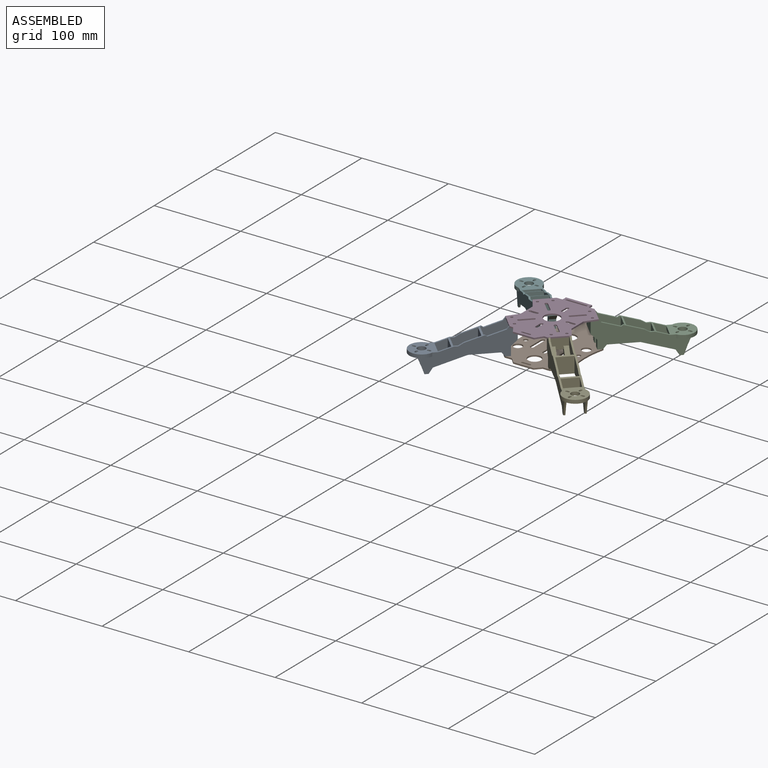
[diagram: assembled view]
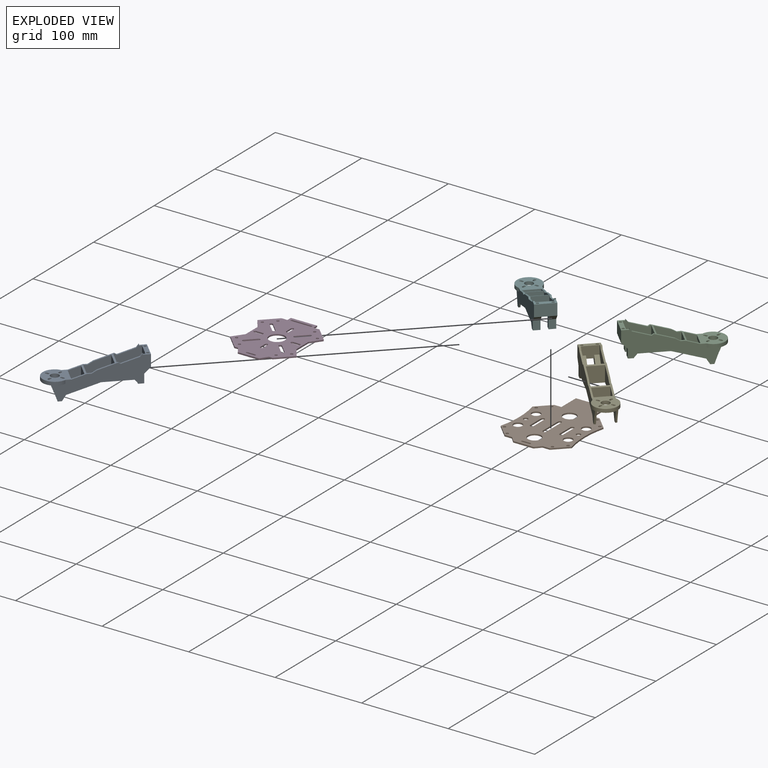
[diagram: exploded view]
GUIDED TOUR — MATED ASSEMBLY (Onshape document 4a01d97d191e2ebf08fce994, AutoMate assembly 4a01d97d191e2ebf08fce994_b2b77ca32bcb225201339847_6d13e0191be2b3ca33e12d50_default)

This assembly has 6 components, labeled P0..P5 below (a component is one placed occurrence of a part; the same part can appear more than once), held together by 4 mates. A mate is a constraint between two components; its type names the relative motion it leaves free:
  CYLINDRICAL — leaves both rotation about and translation along the listed axis free,
  PARALLEL — keeps the two listed directions parallel,
  PLANAR — leaves sliding in the plane through the listed point (normal = the listed direction) and rotation about that normal free.
Axis/direction vectors are unit vectors and 'through' points are millimeter coordinates, both in the assembly's world frame.

MATES
  1. PLANAR "Planar 3": P0 <-> P3, direction (0.000, 0.000, 1.000) through (-26.81, -26.81, -1.63) mm
  2. PLANAR "Planar 4": P1 <-> P0, direction (0.000, 0.000, 1.000) through (-2.00, 12.50, -31.63) mm
  3. PARALLEL "Parallel 1": P0 <-> P3, direction (0.707, 0.707, 0.000) through (-37.58, -23.09, -0.93) mm
  4. CYLINDRICAL "Cylindrical 1": P0 <-> P3, axis (0.000, 0.000, 1.000) through (-21.21, -31.82, -1.63) mm

ASSEMBLY ORDER
  1. P5 — the base component [order verified]
  2. P2 [order verified]
  3. P4 [order verified]
  4. P0 [order verified]
  5. P1 [order verified]
  6. P3 [order verified]
Order-tag legend:
  [order verified] — this step's position reverses a verified removal order: the component was checked to insert without passing through the ones already placed.

Of the 6 components, 2 carry the full construction recipe — the FeatureScript program that regenerates the part's solid from scratch; the rest are supplied as boundary geometry only.
Each toured component is shown spotlighted twice — in the assembled view, then in the exploded view, where a leader line traces a displaced component back to its assembled socket (saturated green if recipe-attached, orange if geometry-only; every other component desaturated gray) — followed by its recipe or geometry summary and the mates that hold it.
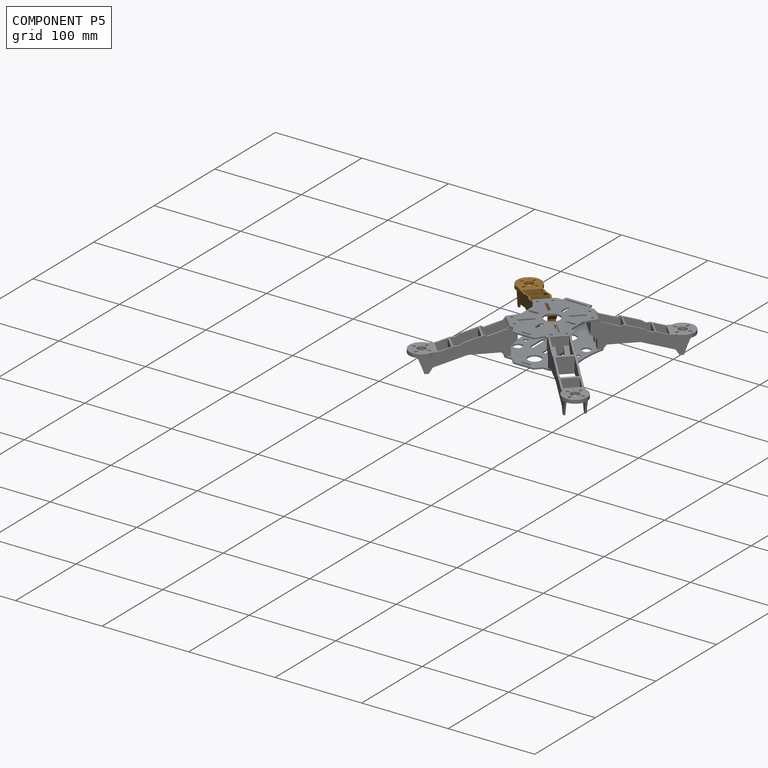
[diagram: component P5 — assembled]
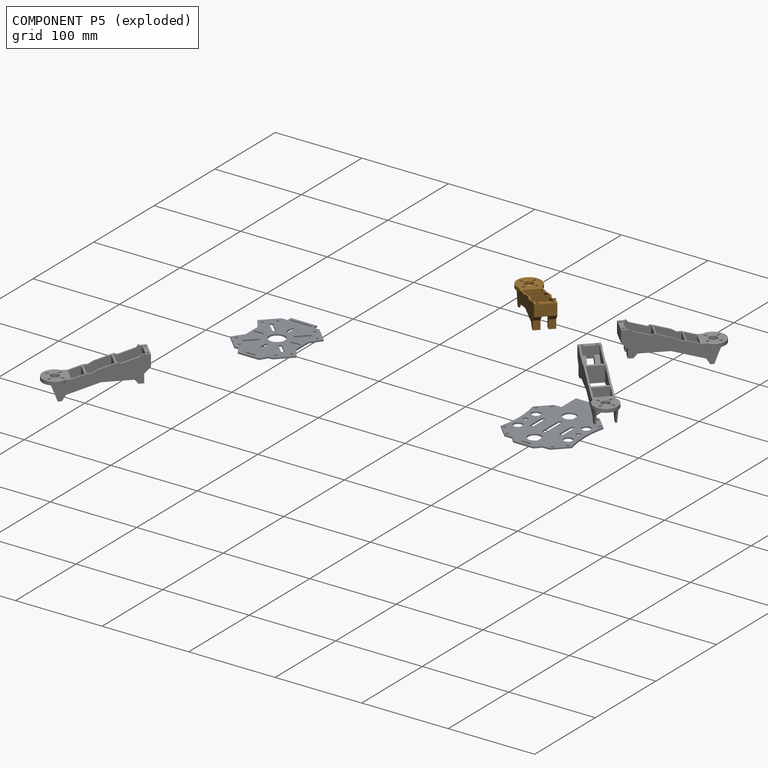
[diagram: component P5 — exploded]
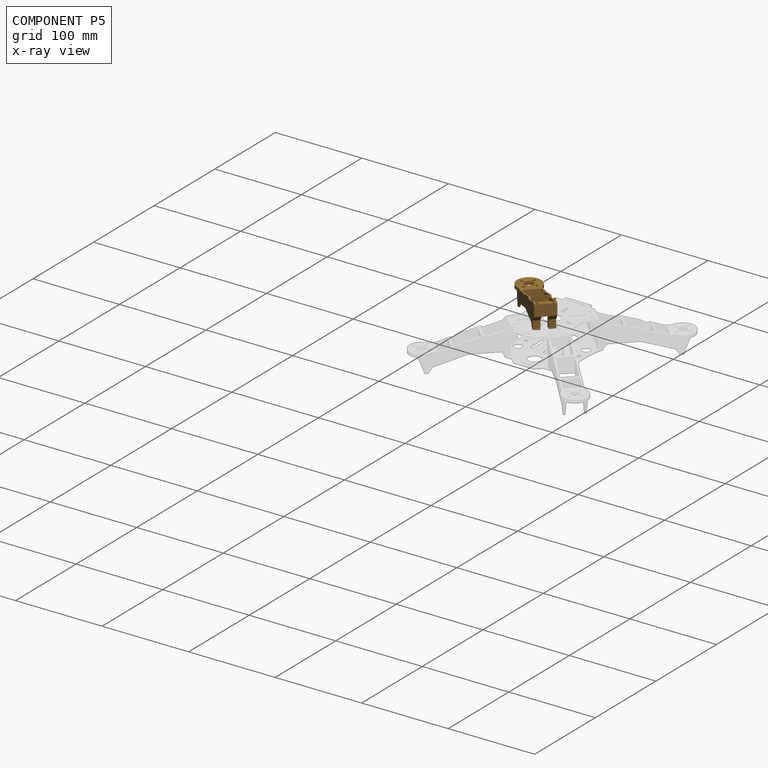
[diagram: component P5 — x-ray view]
COMPONENT P5 — geometry summary (no construction recipe available for this part):
  bounding box: 104.5 x 43.7 x 28.0 mm
  B-rep topology: 1 solid, 83 faces, 490 edges
  volume: 12116 mm^3 (9% of its bounding box)
  symmetry: mirror-symmetric across its y mid-plane
Held by: no mates (free).
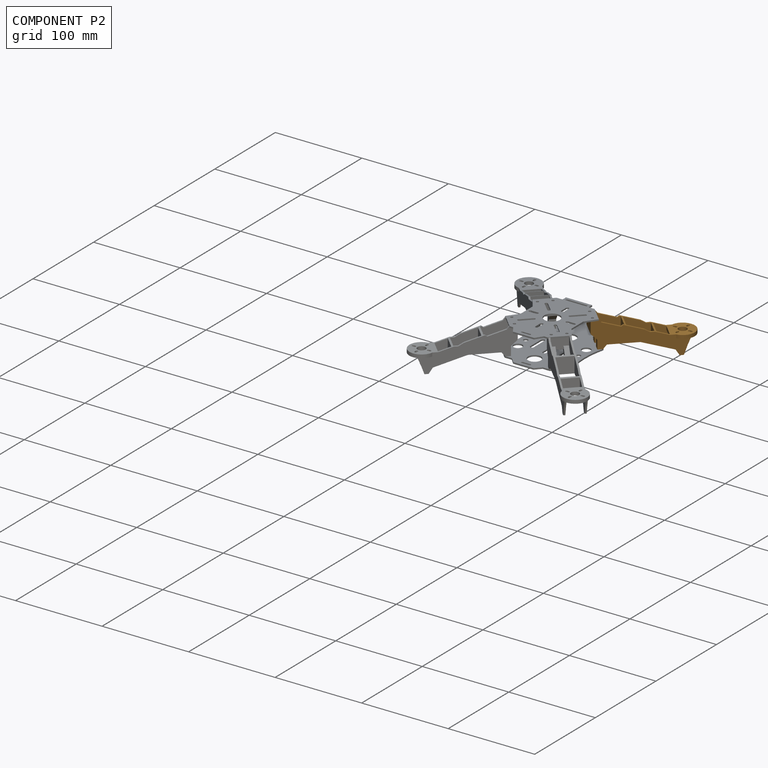
[diagram: component P2 — assembled]
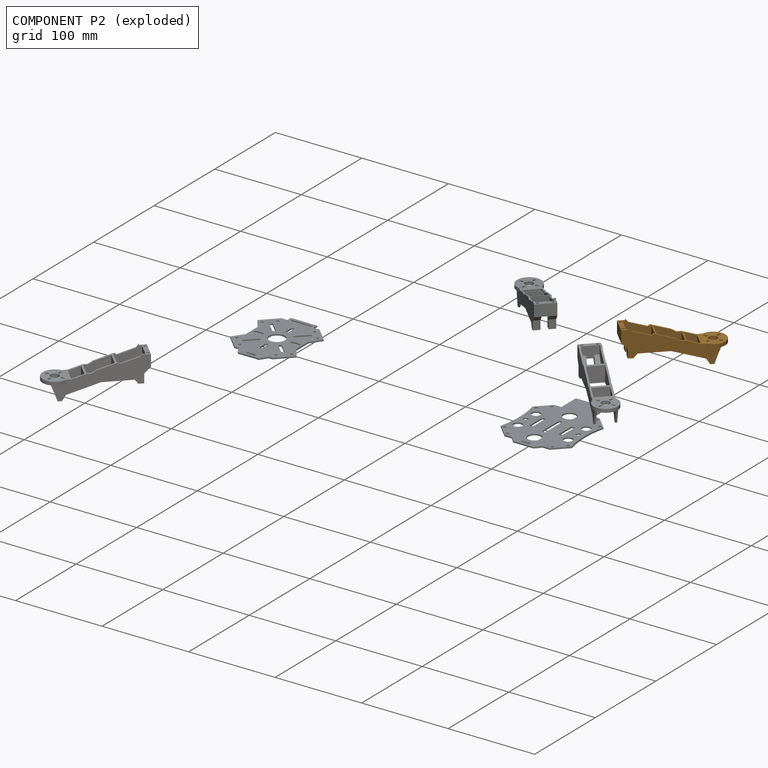
[diagram: component P2 — exploded]
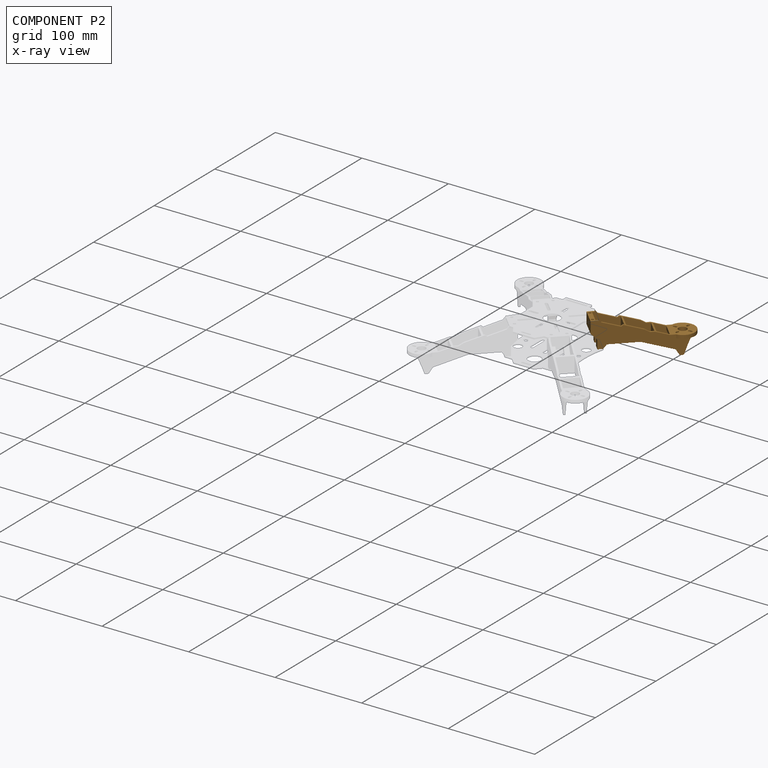
[diagram: component P2 — x-ray view]
COMPONENT P2 — geometry summary (no construction recipe available for this part):
  bounding box: 104.5 x 43.7 x 28.0 mm
  B-rep topology: 1 solid, 83 faces, 490 edges
  volume: 12116 mm^3 (9% of its bounding box)
  symmetry: mirror-symmetric across its y mid-plane
Held by: no mates (free).
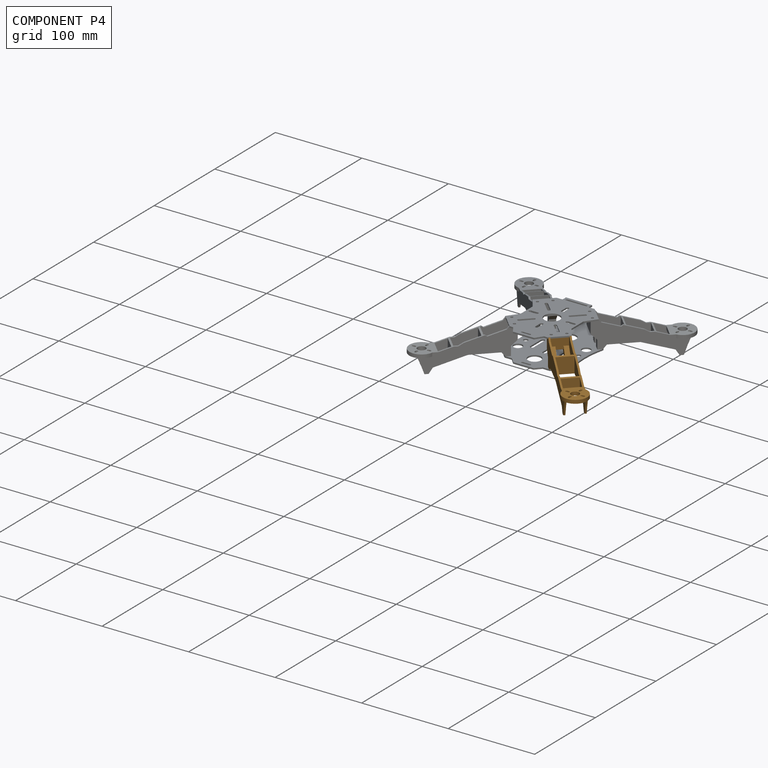
[diagram: component P4 — assembled]
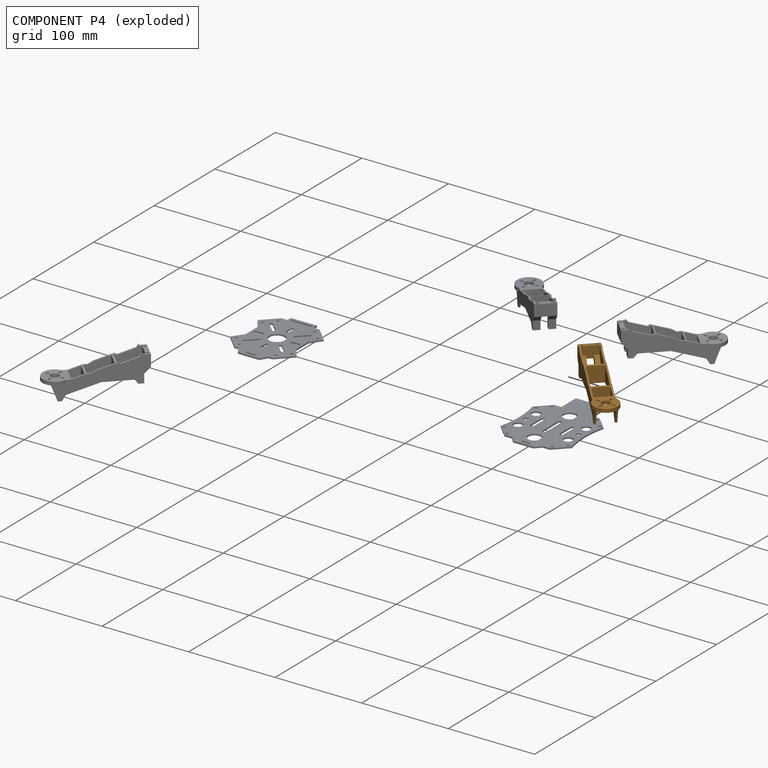
[diagram: component P4 — exploded]
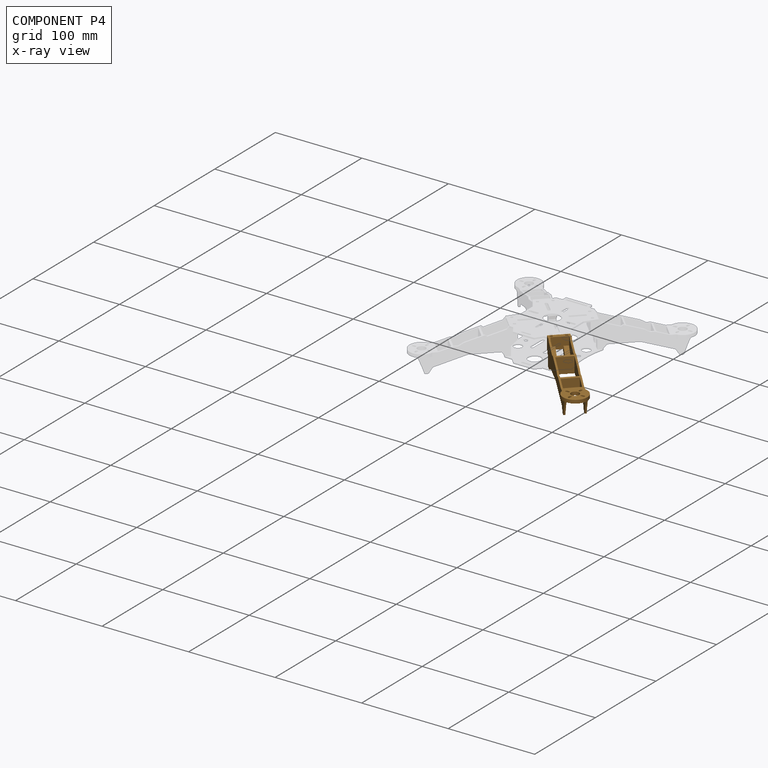
[diagram: component P4 — x-ray view]
COMPONENT P4 — geometry summary (no construction recipe available for this part):
  bounding box: 104.5 x 43.7 x 28.0 mm
  B-rep topology: 1 solid, 83 faces, 490 edges
  volume: 12116 mm^3 (9% of its bounding box)
  symmetry: mirror-symmetric across its y mid-plane
Held by: no mates (free).
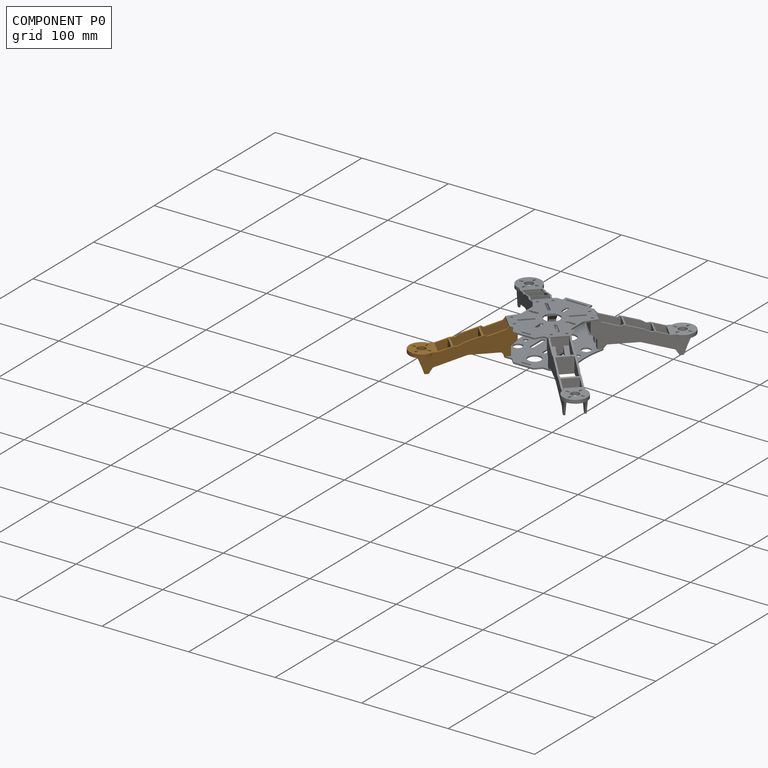
[diagram: component P0 — assembled]
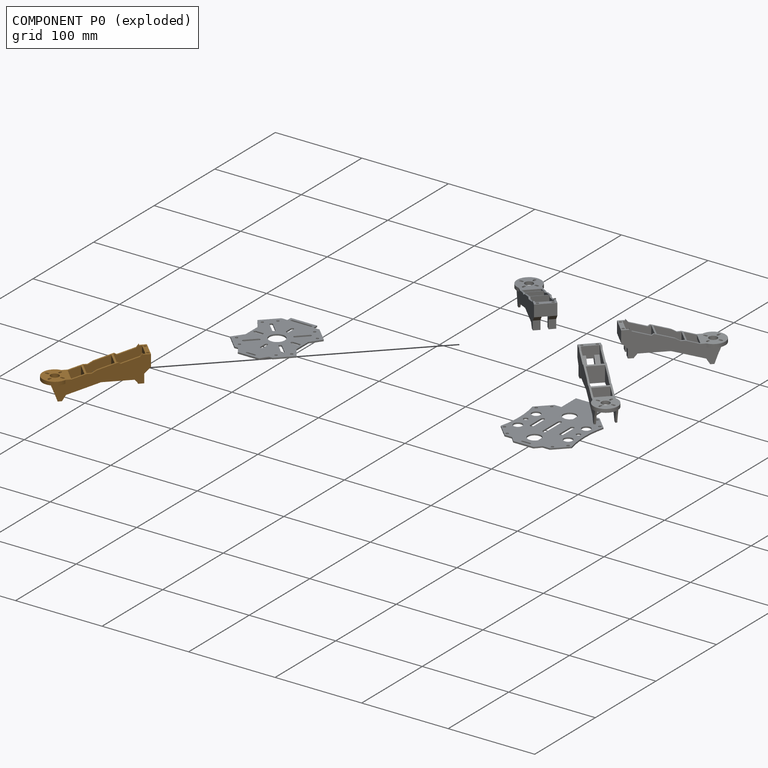
[diagram: component P0 — exploded]
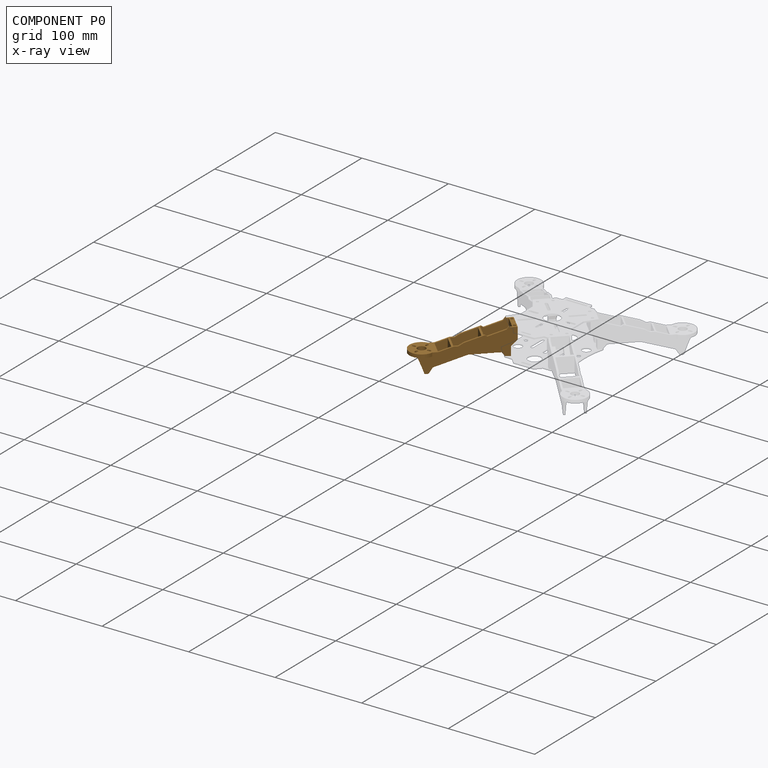
[diagram: component P0 — x-ray view]
COMPONENT P0 — geometry summary (no construction recipe available for this part):
  bounding box: 104.5 x 43.7 x 28.0 mm
  B-rep topology: 1 solid, 83 faces, 490 edges
  volume: 12116 mm^3 (9% of its bounding box)
  symmetry: mirror-symmetric across its y mid-plane
Held by: PLANAR mate "Planar 3" to P3; PLANAR mate "Planar 4" to P1; PARALLEL mate "Parallel 1" to P3; CYLINDRICAL mate "Cylindrical 1" to P3.
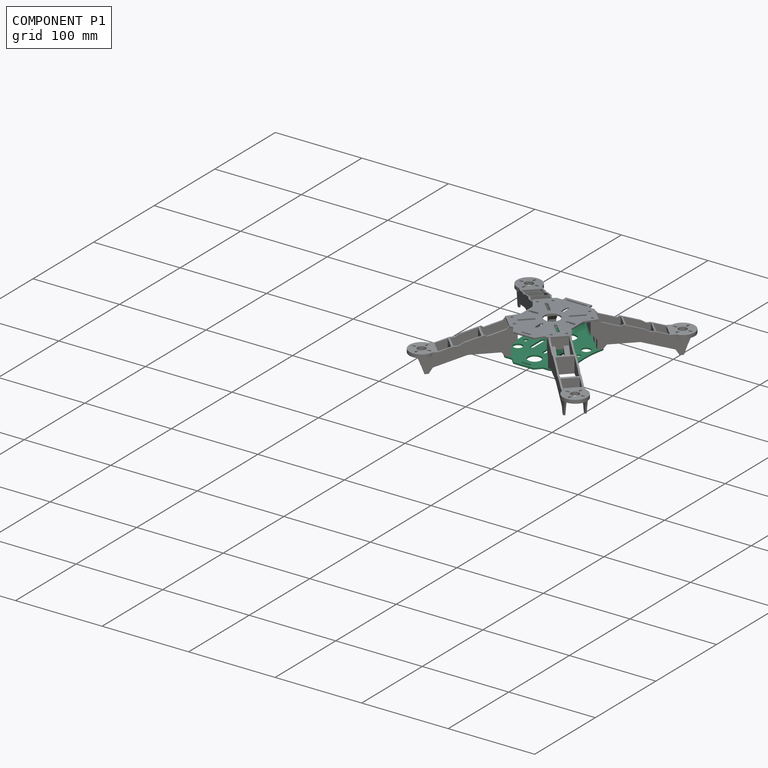
[diagram: component P1 — assembled]
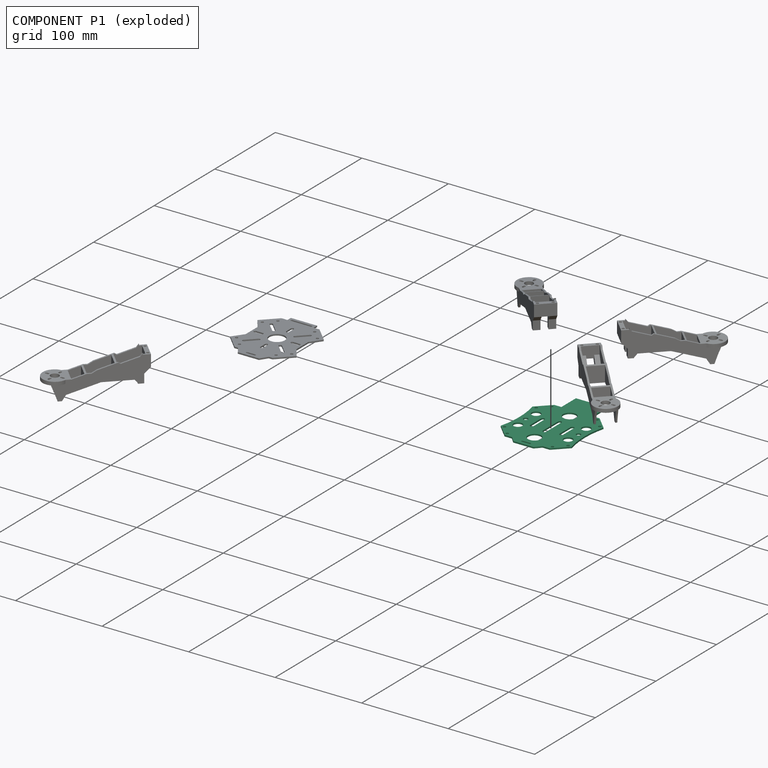
[diagram: component P1 — exploded]
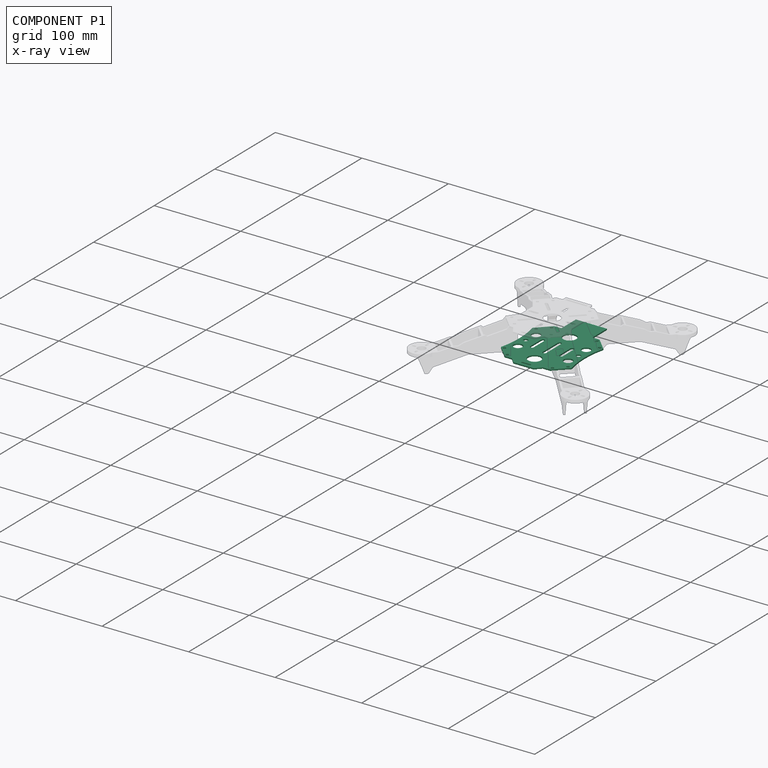
[diagram: component P1 — x-ray view]
COMPONENT P1 — recipe-attached (CADFS 00325816, mesh-verified: the recipe's output STEP matches this component's geometry to below the mesh-comparison resolution (tessellation chordal tolerance ~0.209 mm)).
Held by: PLANAR mate "Planar 4" to P0.
Construction recipe (FeatureScript — the CAD program that rebuilds this solid; sketch coordinates are in the units given by the * unit suffixes, e.g. mm):

FeatureScript 1511;
import(path : "onshape/std/geometry.fs", version : "1511.0");
import(path : "onshape/std/common.fs", version : "1511.0");
const mm = millimeter;
const VERTEX = EntityType.VERTEX;
const EDGE = EntityType.EDGE;
const FACE = EntityType.FACE;
const BODY = EntityType.BODY;
function v(x, y){return vector(x, y);}
function OD(order){return orderDisambiguation(order);}
function OSD(set){return originalSetDisambiguation(set);}
function TD(topology){return topologyDisambiguation(topology);}
function TDD(query){return trueDependencyDisambiguation(query);}
function sQuery(a, b, c) {return sketchEntityQuery(a, b, c);}

annotation { "Feature Type Name" : "Feature", "Feature Type Description" : "" }
export const myFeature = defineFeature(function(context is Context, id is Id, definition is map)
    precondition{}
    {
        {
            var Q0;
            Q0=qCreatedBy(makeId("Top.planeOp"),FACE);
            var sketch = newSketch(context, id + "F0", { "sketchPlane" : qUnion([Q0])});
            skLineSegment(sketch, "E0.left", {"start": v(-2, 12.5) * mm, "end": v(-2, -12.5) * mm});
            skLineSegment(sketch, "E0.right", {"start": v(2, 12.5) * mm, "end": v(2, -12.5) * mm});
            skLineSegment(sketch, "E1", {"start": v(0, 0) * mm, "end": v(0, 54.3) * mm, "construction": true});
            skArc(sketch, "E2", {"start": v(2, 12.5) * mm, "mid": v(0, 14.5) * mm, "end": v(-2, 12.5) * mm});
            skArc(sketch, "E3", {"start": v(-2, -12.5) * mm, "mid": v(0, -14.5) * mm, "end": v(2, -12.5) * mm});
            skLineSegment(sketch, "E4", {"start": v(-64.66, 0) * mm, "end": v(96.62, 0) * mm, "construction": true});
            skLineSegment(sketch, "E5.left", {"start": v(-19, 9) * mm, "end": v(-19, -9) * mm});
            skLineSegment(sketch, "E5.right", {"start": v(-15, 9) * mm, "end": v(-15, -9) * mm});
            skArc(sketch, "E6", {"start": v(-15, 9) * mm, "mid": v(-17, 11) * mm, "end": v(-19, 9) * mm});
            skArc(sketch, "E7", {"start": v(-19, -9) * mm, "mid": v(-17, -11) * mm, "end": v(-15, -9) * mm});
            skArc(sketch, "E8.MirrorCS", {"start": v(19, -9) * mm, "mid": v(17, -11) * mm, "end": v(15, -9) * mm});
            skArc(sketch, "E9.MirrorCS", {"start": v(15, 9) * mm, "mid": v(17, 11) * mm, "end": v(19, 9) * mm});
            skLineSegment(sketch, "E10.MirrorCS", {"start": v(15, 9) * mm, "end": v(15, -9) * mm});
            skLineSegment(sketch, "E11.MirrorCS", {"start": v(19, 9) * mm, "end": v(19, -9) * mm});
            skCircle(sketch, "E12", {"center": v(-30.5, 0) * mm, "radius": 2.5 * mm});
            skCircle(sketch, "E13.MirrorC", {"center": v(30.5, 0) * mm, "radius": 2.5 * mm});
            skCircle(sketch, "E14", {"center": v(0, 29) * mm, "radius": 7.5 * mm});
            skCircle(sketch, "E15.MirrorC", {"center": v(0, -29) * mm, "radius": 7.5 * mm});
            skCircle(sketch, "E16", {"center": v(-29, 15) * mm, "radius": 5 * mm});
            skCircle(sketch, "E17.MirrorC", {"center": v(29, 15) * mm, "radius": 5 * mm});
            skCircle(sketch, "E18.MirrorC", {"center": v(-29, -15) * mm, "radius": 5 * mm});
            skCircle(sketch, "E19.MirrorC", {"center": v(29, -15) * mm, "radius": 5 * mm});
            skLineSegment(sketch, "E20.bottom", {"start": v(-4.5, 44) * mm, "end": v(4.5, 44) * mm});
            skLineSegment(sketch, "E20.top", {"start": v(-4.5, 42) * mm, "end": v(4.5, 42) * mm});
            skLineSegment(sketch, "E20.left", {"start": v(-4.5, 44) * mm, "end": v(-4.5, 42) * mm, "construction": true});
            skLineSegment(sketch, "E20.right", {"start": v(4.5, 44) * mm, "end": v(4.5, 42) * mm, "construction": true});
            skArc(sketch, "E21", {"start": v(-4.5, 44) * mm, "mid": v(-5.5, 43) * mm, "end": v(-4.5, 42) * mm});
            skArc(sketch, "E22", {"start": v(4.5, 42) * mm, "mid": v(5.5, 43) * mm, "end": v(4.5, 44) * mm});
            skLineSegment(sketch, "E23", {"start": v(-11.75, 47.5) * mm, "end": v(11.75, 47.5) * mm});
            skLineSegment(sketch, "E24", {"start": v(-18, -65) * mm, "end": v(18, -65) * mm});
            skArc(sketch, "E25", {"start": v(-41, -26.18) * mm, "mid": v(-37.75, 0) * mm, "end": v(-41, 26.18) * mm});
            skLineSegment(sketch, "E26", {"start": v(-41, 26.18) * mm, "end": v(-26.18, 41) * mm});
            skLineSegment(sketch, "E27", {"start": v(-26.18, 41) * mm, "end": v(-17.75, 41) * mm});
            skLineSegment(sketch, "E28", {"start": v(-17.75, 41) * mm, "end": v(-11.75, 47.5) * mm});
            skLineSegment(sketch, "E29", {"start": v(0, 0) * mm, "end": v(-64.55, 64.55) * mm, "construction": true});
            skLineSegment(sketch, "E30.MirrorCS", {"start": v(-41, -26.18) * mm, "end": v(-26.18, -41) * mm});
            skLineSegment(sketch, "E31", {"start": v(-18, -65) * mm, "end": v(-18, -41) * mm});
            skLineSegment(sketch, "E32", {"start": v(-18, -41) * mm, "end": v(-26.18, -41) * mm});
            skLineSegment(sketch, "E33.MirrorCS", {"start": v(41, 26.18) * mm, "end": v(26.18, 41) * mm});
            skLineSegment(sketch, "E34.MirrorCS", {"start": v(26.18, 41) * mm, "end": v(17.75, 41) * mm});
            skLineSegment(sketch, "E35.MirrorCS", {"start": v(17.75, 41) * mm, "end": v(11.75, 47.5) * mm});
            skArc(sketch, "E36.MirrorCS", {"start": v(41, -26.18) * mm, "mid": v(37.75, 0) * mm, "end": v(41, 26.18) * mm});
            skLineSegment(sketch, "E37.MirrorCS", {"start": v(41, -26.18) * mm, "end": v(26.18, -41) * mm});
            skLineSegment(sketch, "E38.MirrorCS", {"start": v(18, -41) * mm, "end": v(26.18, -41) * mm});
            skLineSegment(sketch, "E39.MirrorCS", {"start": v(18, -65) * mm, "end": v(18, -41) * mm});
            skCircle(sketch, "E40", {"center": v(-26.16, 36.77) * mm, "radius": 1.63 * mm});
            skCircle(sketch, "E41", {"center": v(-36.77, 26.16) * mm, "radius": 1.63 * mm});
            skLineSegment(sketch, "E42", {"start": v(-21.93, 41) * mm, "end": v(-40.2, 22.74) * mm, "construction": true});
            skCircle(sketch, "E43.1.0", {"center": v(-36.77, -26.16) * mm, "radius": 1.63 * mm});
            skCircle(sketch, "E43.1.1", {"center": v(-26.16, -36.77) * mm, "radius": 1.63 * mm});
            skCircle(sketch, "E43.2.0", {"center": v(26.16, -36.77) * mm, "radius": 1.63 * mm});
            skCircle(sketch, "E43.2.1", {"center": v(36.77, -26.16) * mm, "radius": 1.63 * mm});
            skCircle(sketch, "E43.3.0", {"center": v(36.77, 26.16) * mm, "radius": 1.63 * mm});
            skCircle(sketch, "E43.3.1", {"center": v(26.16, 36.77) * mm, "radius": 1.63 * mm});
            skPoint(sketch, "E43.center", {"position": v(0, 0) * mm});
            skSolve(sketch);
        }
        {
            var Q0;
            Q0=makeQuery(id+"F0.imprint","IMPRINT",FACE,{"disambiguationData":[TD([[makeQuery(id+"F0.imprint","IMPRINT",EDGE,{"derivedFrom":sQuery(id+"F0.wireOp",EDGE,"E0.left")}),-1.0]])]});
            extrude(context, id + "F1", {"entities" : qUnion([Q0]), "depth" : 1.6 * mm});
        }
    });
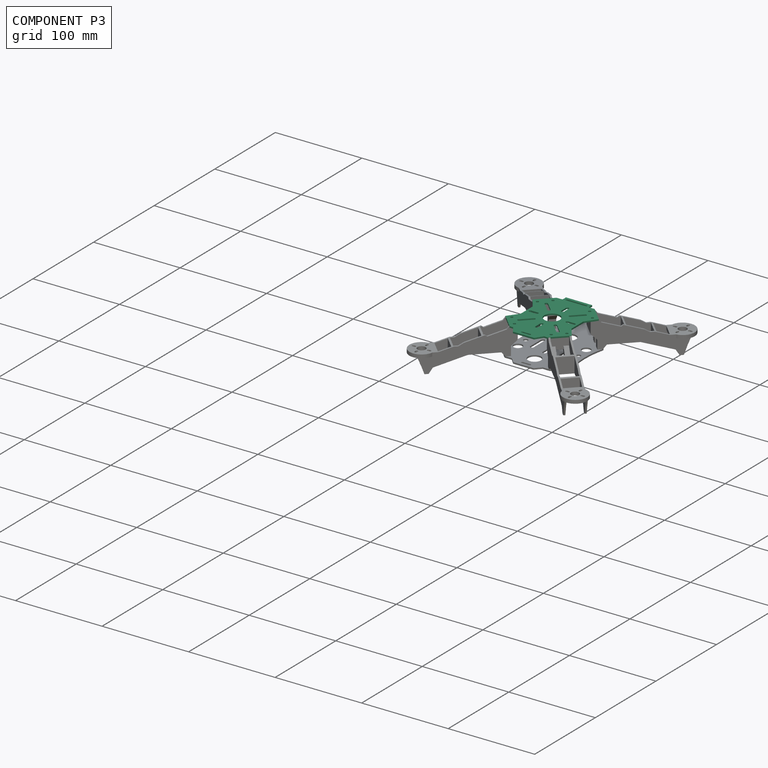
[diagram: component P3 — assembled]
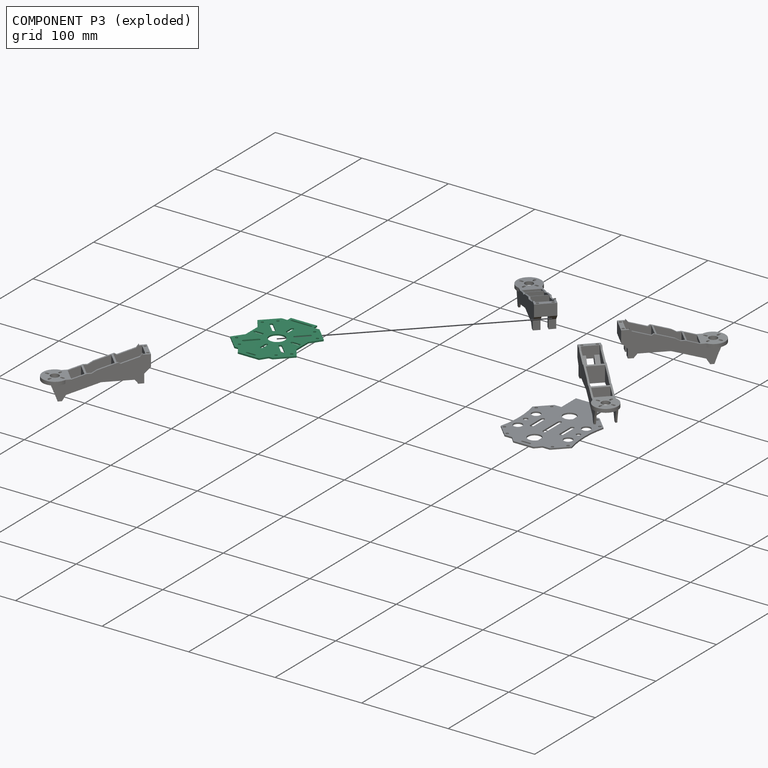
[diagram: component P3 — exploded]
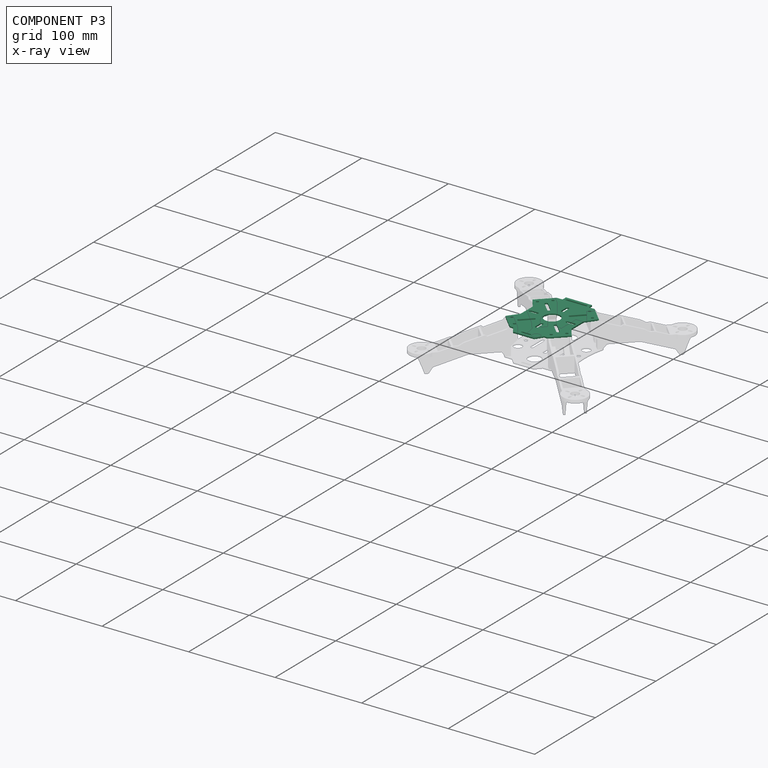
[diagram: component P3 — x-ray view]
COMPONENT P3 — recipe-attached (CADFS 00325815, mesh-verified: the recipe's output STEP matches this component's geometry to below the mesh-comparison resolution (tessellation chordal tolerance ~0.179 mm)).
Held by: PLANAR mate "Planar 3" to P0; PARALLEL mate "Parallel 1" to P0; CYLINDRICAL mate "Cylindrical 1" to P0.
Construction recipe (FeatureScript — the CAD program that rebuilds this solid; sketch coordinates are in the units given by the * unit suffixes, e.g. mm):

FeatureScript 1511;
import(path : "onshape/std/geometry.fs", version : "1511.0");
import(path : "onshape/std/common.fs", version : "1511.0");
const mm = millimeter;
const VERTEX = EntityType.VERTEX;
const EDGE = EntityType.EDGE;
const FACE = EntityType.FACE;
const BODY = EntityType.BODY;
function v(x, y){return vector(x, y);}
function OD(order){return orderDisambiguation(order);}
function OSD(set){return originalSetDisambiguation(set);}
function TD(topology){return topologyDisambiguation(topology);}
function TDD(query){return trueDependencyDisambiguation(query);}
function sQuery(a, b, c) {return sketchEntityQuery(a, b, c);}

annotation { "Feature Type Name" : "Feature", "Feature Type Description" : "" }
export const myFeature = defineFeature(function(context is Context, id is Id, definition is map)
    precondition{}
    {
        {
            var Q0;
            Q0=qCreatedBy(makeId("Top.planeOp"),FACE);
            var sketch = newSketch(context, id + "F0", { "sketchPlane" : qUnion([Q0])});
            skCircle(sketch, "E0", {"center": v(0, 0) * mm, "radius": 9 * mm});
            skLineSegment(sketch, "E1", {"start": v(0, 0) * mm, "end": v(0, 78.14) * mm, "construction": true});
            skLineSegment(sketch, "E2", {"start": v(0, 0) * mm, "end": v(-110.17, 0) * mm, "construction": true});
            skLineSegment(sketch, "E3.left", {"start": v(-1.59, 25.29) * mm, "end": v(-1.59, 17.46) * mm});
            skLineSegment(sketch, "E3.right", {"start": v(1.59, 25.29) * mm, "end": v(1.59, 17.46) * mm});
            skArc(sketch, "E4", {"start": v(1.59, 25.29) * mm, "mid": v(0, 26.87) * mm, "end": v(-1.59, 25.29) * mm});
            skArc(sketch, "E5", {"start": v(-1.59, 17.46) * mm, "mid": v(0, 15.88) * mm, "end": v(1.59, 17.46) * mm});
            skLineSegment(sketch, "E6.1.0", {"start": v(-25.29, -1.59) * mm, "end": v(-17.46, -1.59) * mm});
            skLineSegment(sketch, "E6.1.1", {"start": v(-25.29, 1.59) * mm, "end": v(-17.46, 1.59) * mm});
            skArc(sketch, "E6.1.2", {"start": v(-17.46, -1.59) * mm, "mid": v(-15.88, 0) * mm, "end": v(-17.46, 1.59) * mm});
            skArc(sketch, "E6.1.3", {"start": v(-25.29, 1.59) * mm, "mid": v(-26.87, 0) * mm, "end": v(-25.29, -1.59) * mm});
            skLineSegment(sketch, "E6.2.0", {"start": v(1.59, -25.29) * mm, "end": v(1.59, -17.46) * mm});
            skLineSegment(sketch, "E6.2.1", {"start": v(-1.59, -25.29) * mm, "end": v(-1.59, -17.46) * mm});
            skArc(sketch, "E6.2.2", {"start": v(1.59, -17.46) * mm, "mid": v(0, -15.88) * mm, "end": v(-1.59, -17.46) * mm});
            skArc(sketch, "E6.2.3", {"start": v(-1.59, -25.29) * mm, "mid": v(0, -26.87) * mm, "end": v(1.59, -25.29) * mm});
            skLineSegment(sketch, "E6.3.0", {"start": v(25.29, 1.59) * mm, "end": v(17.46, 1.59) * mm});
            skLineSegment(sketch, "E6.3.1", {"start": v(25.29, -1.59) * mm, "end": v(17.46, -1.59) * mm});
            skArc(sketch, "E6.3.2", {"start": v(17.46, 1.59) * mm, "mid": v(15.88, 0) * mm, "end": v(17.46, -1.59) * mm});
            skArc(sketch, "E6.3.3", {"start": v(25.29, -1.59) * mm, "mid": v(26.87, 0) * mm, "end": v(25.29, 1.59) * mm});
            skLineSegment(sketch, "E7", {"start": v(0, 0) * mm, "end": v(-50.05, 50.05) * mm, "construction": true});
            skLineSegment(sketch, "E8.1.0", {"start": v(-23.6, 21.35) * mm, "end": v(-13.47, 11.23) * mm});
            skLineSegment(sketch, "E8.1.1", {"start": v(-21.35, 23.6) * mm, "end": v(-11.23, 13.47) * mm});
            skArc(sketch, "E8.1.2", {"start": v(-13.47, 11.23) * mm, "mid": v(-11.23, 11.23) * mm, "end": v(-11.23, 13.47) * mm});
            skArc(sketch, "E8.1.3", {"start": v(-21.35, 23.6) * mm, "mid": v(-23.6, 23.6) * mm, "end": v(-23.6, 21.35) * mm});
            skArc(sketch, "E9.1.0", {"start": v(-23.6, -21.35) * mm, "mid": v(-23.6, -23.6) * mm, "end": v(-21.35, -23.6) * mm});
            skArc(sketch, "E9.1.1", {"start": v(-11.23, -13.47) * mm, "mid": v(-11.23, -11.23) * mm, "end": v(-13.47, -11.23) * mm});
            skLineSegment(sketch, "E9.1.2", {"start": v(-21.35, -23.6) * mm, "end": v(-11.23, -13.47) * mm});
            skLineSegment(sketch, "E9.1.3", {"start": v(-23.6, -21.35) * mm, "end": v(-13.47, -11.23) * mm});
            skArc(sketch, "E9.2.0", {"start": v(21.35, -23.6) * mm, "mid": v(23.6, -23.6) * mm, "end": v(23.6, -21.35) * mm});
            skArc(sketch, "E9.2.1", {"start": v(13.47, -11.23) * mm, "mid": v(11.23, -11.23) * mm, "end": v(11.23, -13.47) * mm});
            skLineSegment(sketch, "E9.2.2", {"start": v(23.6, -21.35) * mm, "end": v(13.47, -11.23) * mm});
            skLineSegment(sketch, "E9.2.3", {"start": v(21.35, -23.6) * mm, "end": v(11.23, -13.47) * mm});
            skArc(sketch, "E9.3.0", {"start": v(23.6, 21.35) * mm, "mid": v(23.6, 23.6) * mm, "end": v(21.35, 23.6) * mm});
            skArc(sketch, "E9.3.1", {"start": v(11.23, 13.47) * mm, "mid": v(11.23, 11.23) * mm, "end": v(13.47, 11.23) * mm});
            skLineSegment(sketch, "E9.3.2", {"start": v(21.35, 23.6) * mm, "end": v(11.23, 13.47) * mm});
            skLineSegment(sketch, "E9.3.3", {"start": v(23.6, 21.35) * mm, "end": v(13.47, 11.23) * mm});
            skLineSegment(sketch, "E10", {"start": v(-29.34, -9.84) * mm, "end": v(-29.34, 9.84) * mm});
            skLineSegment(sketch, "E11", {"start": v(-29.34, 9.84) * mm, "end": v(-38.4, 22.4) * mm});
            skLineSegment(sketch, "E12", {"start": v(-38.4, 22.4) * mm, "end": v(-21.96, 38.84) * mm});
            skLineSegment(sketch, "E13", {"start": v(-21.96, 38.84) * mm, "end": v(-15.11, 38.84) * mm});
            skLineSegment(sketch, "E14", {"start": v(-15.11, 38.84) * mm, "end": v(-15.11, 44.55) * mm});
            skLineSegment(sketch, "E15", {"start": v(-15.11, 44.55) * mm, "end": v(0, 44.55) * mm});
            skLineSegment(sketch, "E16", {"start": v(-29.34, -9.84) * mm, "end": v(-38.4, -22.4) * mm});
            skLineSegment(sketch, "E17", {"start": v(-38.4, -22.4) * mm, "end": v(-21.96, -38.84) * mm});
            skLineSegment(sketch, "E18", {"start": v(-21.96, -38.84) * mm, "end": v(-17.78, -38.84) * mm});
            skLineSegment(sketch, "E19", {"start": v(-12.26, -47.2) * mm, "end": v(-17.78, -38.84) * mm});
            skLineSegment(sketch, "E20", {"start": v(-12.26, -47.2) * mm, "end": v(0, -47.2) * mm});
            skLineSegment(sketch, "E21.MirrorCS", {"start": v(15.11, 44.55) * mm, "end": v(0, 44.55) * mm});
            skLineSegment(sketch, "E22.MirrorCS", {"start": v(15.11, 38.84) * mm, "end": v(15.11, 44.55) * mm});
            skLineSegment(sketch, "E23.MirrorCS", {"start": v(21.96, 38.84) * mm, "end": v(15.11, 38.84) * mm});
            skLineSegment(sketch, "E24.MirrorCS", {"start": v(38.4, 22.4) * mm, "end": v(21.96, 38.84) * mm});
            skLineSegment(sketch, "E25.MirrorCS", {"start": v(29.34, 9.84) * mm, "end": v(38.4, 22.4) * mm});
            skLineSegment(sketch, "E26.MirrorCS", {"start": v(29.34, -9.84) * mm, "end": v(29.34, 9.84) * mm});
            skLineSegment(sketch, "E27.MirrorCS", {"start": v(29.34, -9.84) * mm, "end": v(38.4, -22.4) * mm});
            skLineSegment(sketch, "E28.MirrorCS", {"start": v(38.4, -22.4) * mm, "end": v(21.96, -38.84) * mm});
            skLineSegment(sketch, "E29.MirrorCS", {"start": v(21.96, -38.84) * mm, "end": v(17.78, -38.84) * mm});
            skLineSegment(sketch, "E30.MirrorCS", {"start": v(12.26, -47.2) * mm, "end": v(17.78, -38.84) * mm});
            skLineSegment(sketch, "E31.MirrorCS", {"start": v(12.26, -47.2) * mm, "end": v(0, -47.2) * mm});
            skLineSegment(sketch, "E32.bottom", {"start": v(-11.3, 41.35) * mm, "end": v(11.3, 41.35) * mm});
            skLineSegment(sketch, "E32.top", {"start": v(-11.3, 39.17) * mm, "end": v(11.3, 39.17) * mm});
            skLineSegment(sketch, "E33.bottom", {"start": v(-4.5, -41.96) * mm, "end": v(4.5, -41.96) * mm});
            skLineSegment(sketch, "E33.top", {"start": v(-4.5, -44) * mm, "end": v(4.5, -44) * mm});
            skArc(sketch, "E34", {"start": v(-11.3, 41.35) * mm, "mid": v(-12.38, 40.26) * mm, "end": v(-11.3, 39.17) * mm});
            skArc(sketch, "E35", {"start": v(11.3, 39.17) * mm, "mid": v(12.38, 40.26) * mm, "end": v(11.3, 41.35) * mm});
            skArc(sketch, "E36", {"start": v(-4.5, -41.96) * mm, "mid": v(-5.52, -42.98) * mm, "end": v(-4.5, -44) * mm});
            skArc(sketch, "E37", {"start": v(4.5, -44) * mm, "mid": v(5.52, -42.98) * mm, "end": v(4.5, -41.96) * mm});
            skCircle(sketch, "E38", {"center": v(-21.21, 31.82) * mm, "radius": 1.5 * mm});
            skCircle(sketch, "E39", {"center": v(-31.82, 21.21) * mm, "radius": 1.5 * mm});
            skLineSegment(sketch, "E40", {"start": v(-19.53, 33.5) * mm, "end": v(-34.67, 18.36) * mm, "construction": true});
            skCircle(sketch, "E41.1.0", {"center": v(-31.82, -21.21) * mm, "radius": 1.5 * mm});
            skCircle(sketch, "E41.1.1", {"center": v(-21.21, -31.82) * mm, "radius": 1.5 * mm});
            skCircle(sketch, "E41.2.0", {"center": v(21.21, -31.82) * mm, "radius": 1.5 * mm});
            skCircle(sketch, "E41.2.1", {"center": v(31.82, -21.21) * mm, "radius": 1.5 * mm});
            skCircle(sketch, "E41.3.0", {"center": v(31.82, 21.21) * mm, "radius": 1.5 * mm});
            skCircle(sketch, "E41.3.1", {"center": v(21.21, 31.82) * mm, "radius": 1.5 * mm});
            skSolve(sketch);
        }
        {
            var Q0;
            Q0=makeQuery(id+"F0.imprint","IMPRINT",FACE,{"disambiguationData":[TD([[makeQuery(id+"F0.imprint","IMPRINT",EDGE,{"derivedFrom":sQuery(id+"F0.wireOp",EDGE,"E0")}),-1.0]])]});
            extrude(context, id + "F1", {"entities" : qUnion([Q0]), "depth" : 1.63 * mm});
        }
    });
PROVENANCE & LICENSES
Assembly (occurrences, transforms, mates, per-part STEP geometry): AutoMate dataset, Zenodo record 7776208, CC0.
Construction recipes: CADFS (HuggingFace VladPyatov/CADFS, CC-BY-4.0, layered over the ABC dataset), FeatureScript reconstruction programs keyed by ABC model id.
Join: ABC meta listings map ABC model id -> Onshape documentId; within a shared document, parts are matched by geometric signature (bounding-box dims + volume at 0.1% relative tolerance, exact B-rep face/solid counts).
Verification: 2 of this assembly's 6 components carry a recipe attachment, and every attachment is mesh-verified: the CADFS STEP and the AutoMate member STEP were compared as meshes in their shared local frame (symmetric sampled-point-to-mesh distance); worst across the 2 attachments: below the mesh-comparison resolution (tessellation chordal tolerance ~0.209 mm) on a 139 mm part.
Renders: orthographic iso camera (az 35 / el 25); the floor grid conveys scale (grid pitch printed in each image; no ruler). In the exploded view each component is displaced by its stored offset vector: the offsets alone carry the explosion direction (mate normal/axis signs are not orientation cues and do not encode it), and separation distances are assigned per mate-chain, not proportionally to assembly-order depth.
